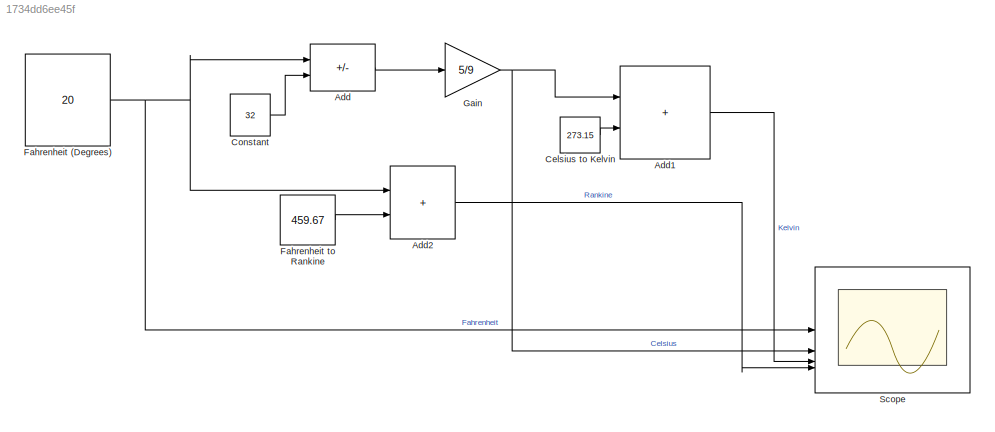
MODEL slx_1734dd6ee45f
KIND model
CONFIG AbsTol = auto
CONFIG EnableMultiTasking = off
CONFIG FixedStep = auto
CONFIG MaxStep = auto
CONFIG MinStep = auto
CONFIG RelTol = 1e-3
CONFIG SampleTimeConstraint = Unconstrained
CONFIG SolverName = VariableStepAuto
CONFIG StartTime = 0.0
CONFIG StopTime = 10.0
BLOCK [Sum] Add
  IconShape = rectangular
  Inputs = +-
BLOCK [Sum] Add1
  IconShape = rectangular
BLOCK [Sum] Add2
  IconShape = rectangular
BLOCK [Constant] Celsius to Kelvin
  Value = 273.15
BLOCK [Constant] Constant
  Value = 32
BLOCK [Constant] Fahrenheit (Degrees)
  Value = 20
BLOCK [Constant] Fahrenheit to Rankine
  Value = 459.67
BLOCK [Gain] Gain
  Gain = 5/9
BLOCK [Scope] Scope
  ActiveDisplayYMaximum = 500
  ContainerLayout = {"WindowBounds":[-9338,1368,571,759]}
  Floating = off
  GraphicalSettings = {"Style":{"BackgroundColor":[0.12941176470588237,0.12941176470588237,0.12941176470588237],"AxesColor":[0.07058823529411765,0.07058823529411765,0.07058823529411765],"LabelsColor":[0.8509803921568627,0.8509803921568627,0.8509803921568627],"PreserveColors":false,"Visible":[true,true,true,true],"LineStyle":["-","-","-","-"],"LineWidth":[1.5,1.5,1.5,1.5],"BarWidth":[0.9,0.9,0.9,0.9],"LineColor":[[1,1,0...<+3202ch>
  LayoutDimensionsString = [2 2]
  MultipleDisplayCache = [{"MaxYLimMag":540.46208333333334,"MaxYLimReal":500,"MinYLimMag":0,"MinYLimReal":-10,"PlotAsMagnitudePhase":false,"ShowGrid":true,"ShowLegend":true,"Title":"%<SignalLabel>","YLabel":""},{"MaxYLimMag":540.46208333333334,"MaxYLimReal":645.74513661702679,"MinYLimMag":0,"MinYLimReal":-223.00896591781191,"PlotAsMagnitudePhase":false,"ShowGrid":true,"ShowLegend":true,"Title":"%<SignalLabel>","YLabel":""...<+434ch>
  NumInputPorts = 4
  OpenAtSimulationStart = on
  SampleTime = 10
  ShowLegend = on
  Visible = on
  WasSavedAsWebScope = on
  WindowPosition = [662.000000,0.000000,573.000000,761.000000,]
LINE Add1:1 -> Scope:3
LINE Add2:1 -> Scope:4
LINE Add:1 -> Gain:1
LINE Celsius to Kelvin:1 -> Add1:2
LINE Constant:1 -> Add:2
NET Fahrenheit (Degrees):1 -> Add2:1, Add:1, Scope:1
LINE Fahrenheit to Rankine:1 -> Add2:2
NET Gain:1 -> Add1:1, Scope:2
note: NET lines group one-source signal fan-out (src -> all destinations, sorted); 1:1 wires keep LINE
